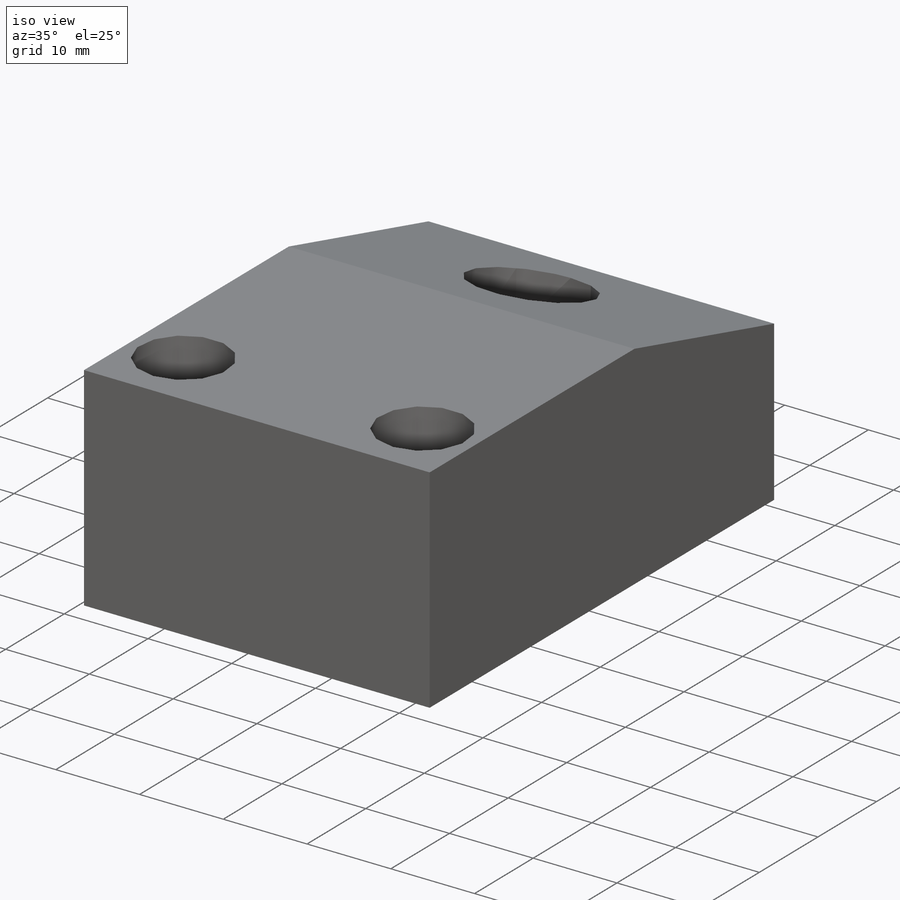
[diagram: iso view]
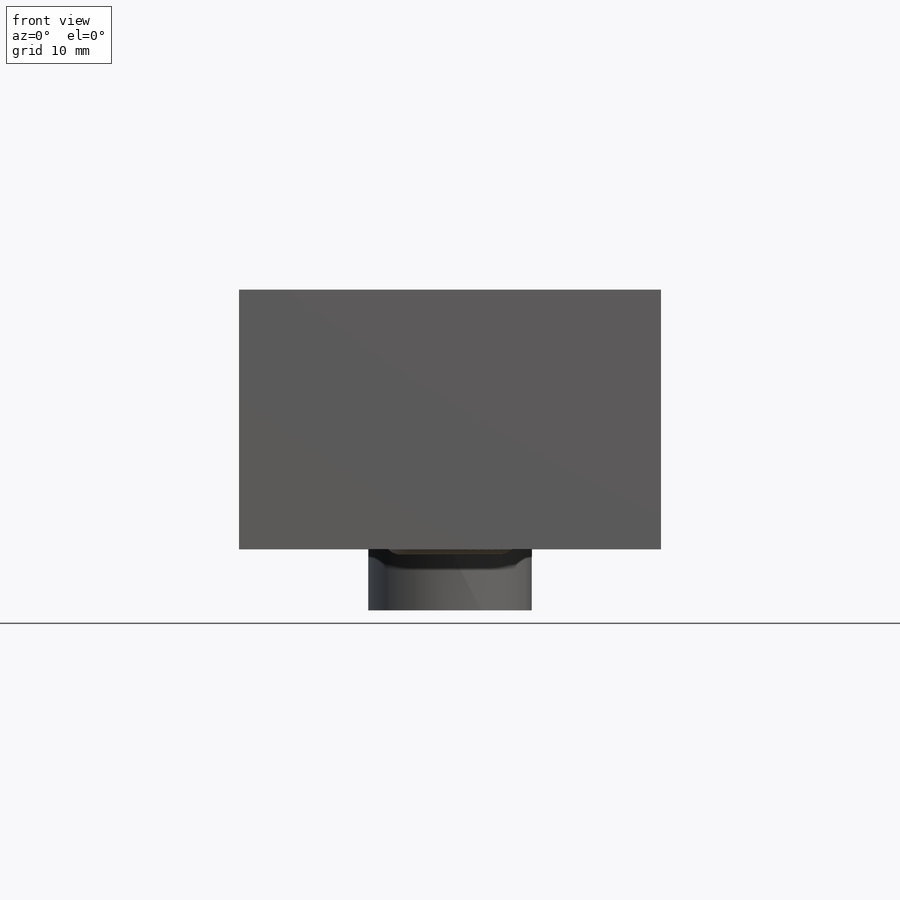
[diagram: front view]
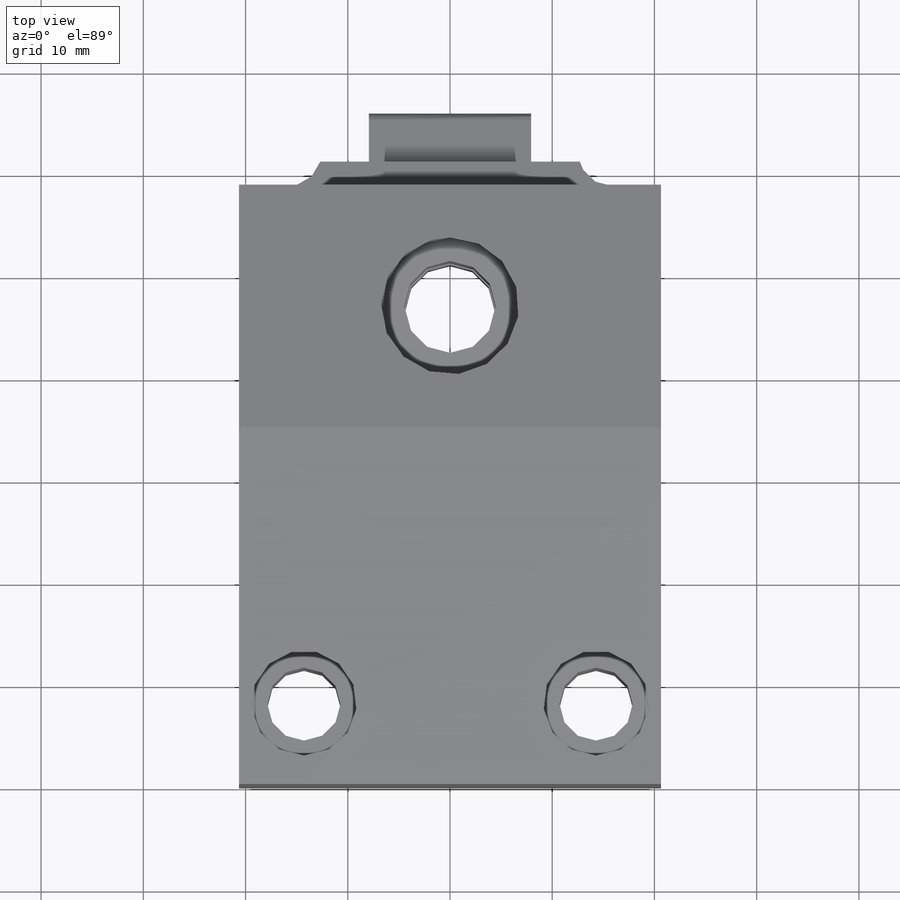
[diagram: top view]
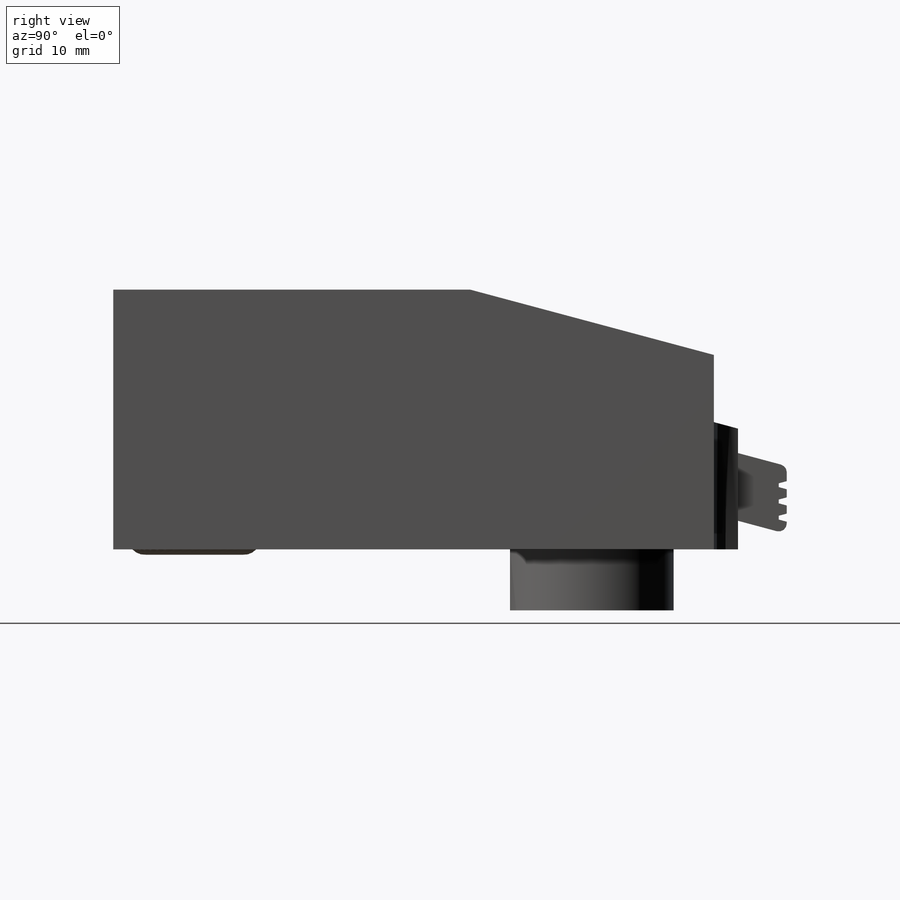
[diagram: right view]
SOLIDWORKS PART (.sldprt)
format: sldprt  version: not decoded by parser v0  size: 314,368 bytes
history: native  units: mm
features: sketch x10, plane x7, extrude x3, cut_extrude x2, cut_revolve x2, material x1, pattern_linear x1, fillet x1, revolve x1, hole x1 (+13 scaffold rows collapsed)
feature tree (42):
  scaffold x13  (default folders/planes/origin — collapsed)
  material  "Alloy Steel"
  plane  "Plane1"
  sketch  "Sketch1"  dims[c1.D1=25.4mm c1.D2=34.925mm c1.D3=24.6634mm c2.D3=15.0deg c2.D4=~2.364385mm c2.D5=6.35mm c2.D6=61.1124mm]
  extrude  "Extrude1"  Depth=20.6375mm
  sketch  "Sketch2"  dims[D1=3.175mm D2=7.9375mm D3=~2.364385mm D4=25.4mm]
  cut_extrude  "Cut-Extrude1"  Depth=0mm
  plane  "Plane2"
  sketch  "Sketch3"  dims[c1.D1=~4.886643mm c1.D2=~17.338357mm c1.D3=3.175mm c2.D1=18.6307mm c2.D2=3.175mm c2.D3=6.35mm c2.D4=13.487mm c2.D5=8.992mm c2.D6=3.175mm c2.D7=~15.99946mm c3.D3=46.8122mm c3.D8=13.487mm]
  cut_revolve  "Cut-Revolve1"  Angle=360deg
  plane  "Plane3"
  sketch  "Sketch4"  dims[D1=8.7376mm D2=~15.99946mm]
  extrude  "Extrude2"  Depth=9.144mm
  plane  "Plane4"
  sketch  "S2D0005"  dims[D1=3.175mm D2=6.35mm D3=2.642mm D4=12.927mm]
  cut_revolve  "Cut-Revolve2"  Angle=360deg
  plane  "Plane5"
  sketch  "Sketch6"  dims[D1=6.4008mm D2=2.3114mm D3=4.7752mm]
  extrude  "Extrude3"  Depth=7.9375mm
  plane  "Plane6"
  sketch  "Sketch7"  dims[D1=~0.79375mm D2=1.5875mm D3=~0.79375mm D4=~0.368381mm]
  cut_extrude  "Cut-Extrude2"  Depth=49.53mm
  pattern_linear  "LPattern2"  Count1=3 Count2=1 Spacing1=1.5875mm Spacing2=2.54mm
  fillet  "Fillet1"  Radius=0.7874mm
  plane  "Plane9"
  sketch  "Sketch8"  dims[D1=3.175mm D2=9.752mm]
  revolve  "Revolve1"  Angle=360deg
  hole  "Hole1"  Diameter=7.137mm Depth=31.369mm
  sketch  "Sketch10"  dims[D1=7.9248mm D2=28.575mm]
  sketch  "Sketch9"  dims[Diameter=7.137mm Depth=31.369mm C-Bore Diameter=10.3124mm C-Bore Depth=6.35mm]
decode coverage: 21 of 21 modeling features carry decoded parameters
note: ~ marks probable driven/reference dimensions
note: suppression state not decoded; provenance and decode notes live in map.json
